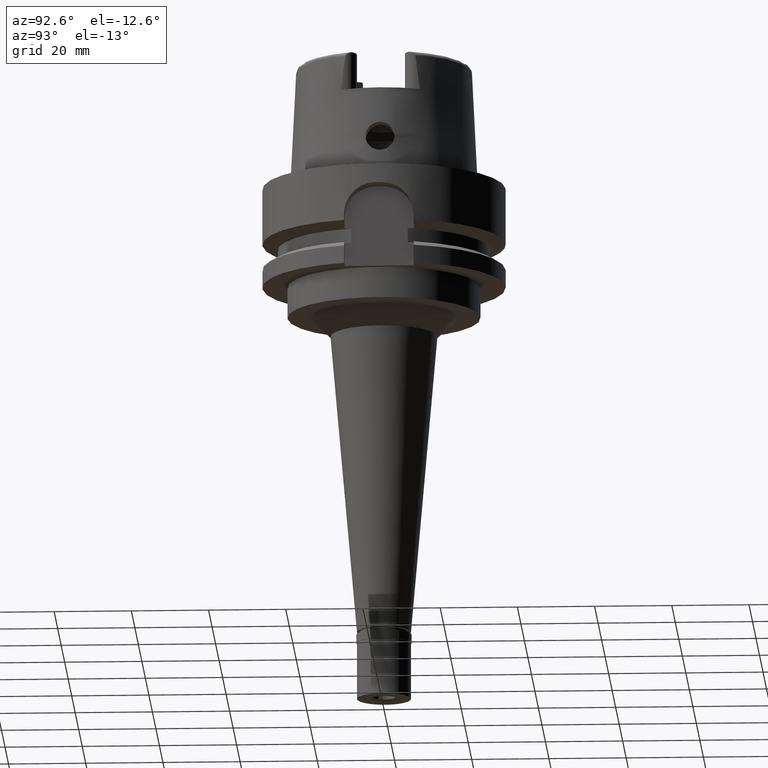
[diagram: clean part render]
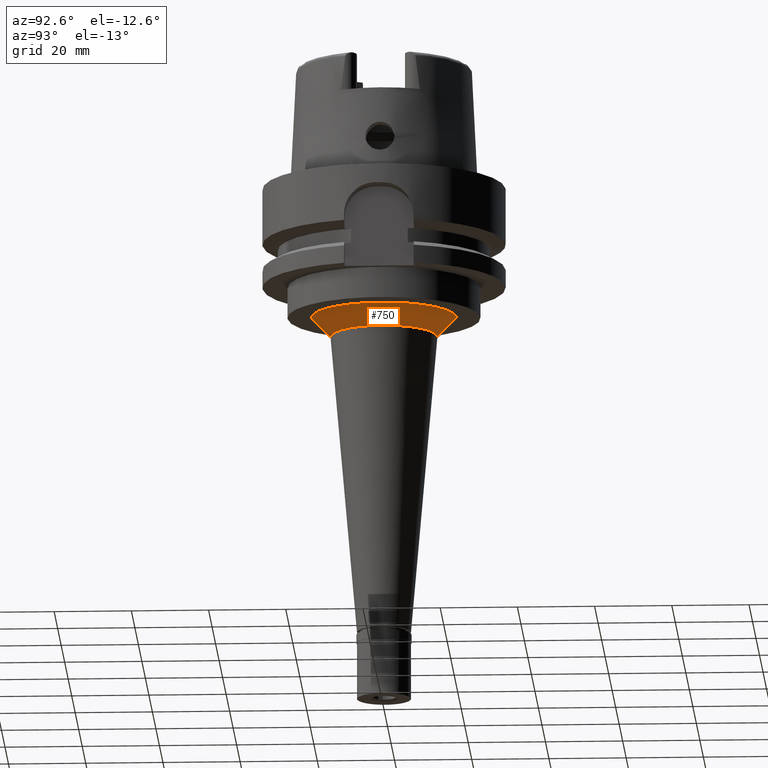
[diagram: same view with one face highlighted and labeled with its STEP entity id]
A machine part, auxiliary view. The second image highlights one B-rep face of the part: STEP entity #750.
In plain terms, the highlighted conical surface has half-angle 45 deg.
Its self-contained STEP definition (entity closure, byte-faithful):
#479 = ORIENTED_EDGE ( 'NONE', *, *, #3375, .T. ) ;
#490 = VECTOR ( 'NONE', #4602, 1000.000000000000114 ) ;
#554 = CIRCLE ( 'NONE', #1347, 13.85036235407999961 ) ;
#737 = ORIENTED_EDGE ( 'NONE', *, *, #1676, .T. ) ;
#750 = ADVANCED_FACE ( 'NONE', ( #2997 ), #4751, .T. ) ;
#936 = CARTESIAN_POINT ( 'NONE',  ( 0.0000000000000000000, 0.0000000000000000000, -36.50000000000000000 ) ) ;
#1088 = CIRCLE ( 'NONE', #2904, 18.85036235408000138 ) ;
#1094 = DIRECTION ( 'NONE',  ( 0.0000000000000000000, 0.7071067811865474617, -0.7071067811865474617 ) ) ;
#1201 = CARTESIAN_POINT ( 'NONE',  ( 0.0000000000000000000, -13.85036235407999961, -39.00000000000000000 ) ) ;
#1329 = LINE ( 'NONE', #3355, #490 ) ;
#1347 = AXIS2_PLACEMENT_3D ( 'NONE', #2809, #1544, #3652 ) ;
#1375 = VERTEX_POINT ( 'NONE', #3944 ) ;
#1544 = DIRECTION ( 'NONE',  ( 0.0000000000000000000, 0.0000000000000000000, 1.000000000000000000 ) ) ;
#1634 = VERTEX_POINT ( 'NONE', #4046 ) ;
#1676 = EDGE_CURVE ( 'NONE', #5254, #1375, #1088, .T. ) ;
#1711 = EDGE_CURVE ( 'NONE', #3934, #1634, #554, .T. ) ;
#1718 = EDGE_LOOP ( 'NONE', ( #737, #479, #4189, #3861 ) ) ;
#1795 = CARTESIAN_POINT ( 'NONE',  ( 0.0000000000000000000, -18.85036235408000138, -34.00000000000000000 ) ) ;
#1937 = CARTESIAN_POINT ( 'NONE',  ( 0.0000000000000000000, 0.0000000000000000000, -34.00000000000000000 ) ) ;
#1993 = DIRECTION ( 'NONE',  ( 0.0000000000000000000, 0.0000000000000000000, -1.000000000000000000 ) ) ;
#2183 = DIRECTION ( 'NONE',  ( 0.0000000000000000000, 0.0000000000000000000, 1.000000000000000000 ) ) ;
#2809 = CARTESIAN_POINT ( 'NONE',  ( 0.0000000000000000000, 0.0000000000000000000, -39.00000000000000000 ) ) ;
#2904 = AXIS2_PLACEMENT_3D ( 'NONE', #1937, #1993, #3216 ) ;
#2997 = FACE_OUTER_BOUND ( 'NONE', #1718, .T. ) ;
#3075 = LINE ( 'NONE', #1795, #5093 ) ;
#3216 = DIRECTION ( 'NONE',  ( 0.0000000000000000000, 1.000000000000000000, 0.0000000000000000000 ) ) ;
#3280 = AXIS2_PLACEMENT_3D ( 'NONE', #936, #2183, #3832 ) ;
#3289 = CARTESIAN_POINT ( 'NONE',  ( 0.0000000000000000000, 18.85036235408000138, -34.00000000000000000 ) ) ;
#3355 = CARTESIAN_POINT ( 'NONE',  ( 0.0000000000000000000, 18.85036235408000138, -34.00000000000000000 ) ) ;
#3375 = EDGE_CURVE ( 'NONE', #1375, #3934, #3075, .T. ) ;
#3652 = DIRECTION ( 'NONE',  ( 0.0000000000000000000, -1.000000000000000000, 0.0000000000000000000 ) ) ;
#3832 = DIRECTION ( 'NONE',  ( 0.0000000000000000000, 1.000000000000000000, 0.0000000000000000000 ) ) ;
#3861 = ORIENTED_EDGE ( 'NONE', *, *, #3999, .F. ) ;
#3934 = VERTEX_POINT ( 'NONE', #1201 ) ;
#3944 = CARTESIAN_POINT ( 'NONE',  ( 0.0000000000000000000, -18.85036235408000138, -34.00000000000000000 ) ) ;
#3999 = EDGE_CURVE ( 'NONE', #5254, #1634, #1329, .T. ) ;
#4046 = CARTESIAN_POINT ( 'NONE',  ( 0.0000000000000000000, 13.85036235407999961, -39.00000000000000000 ) ) ;
#4189 = ORIENTED_EDGE ( 'NONE', *, *, #1711, .T. ) ;
#4602 = DIRECTION ( 'NONE',  ( 0.0000000000000000000, -0.7071067811865474617, -0.7071067811865474617 ) ) ;
#4751 = CONICAL_SURFACE ( 'NONE', #3280, 16.35036235408000138, 0.7853981633972997312 ) ;
#5093 = VECTOR ( 'NONE', #1094, 1000.000000000000114 ) ;
#5254 = VERTEX_POINT ( 'NONE', #3289 ) ;